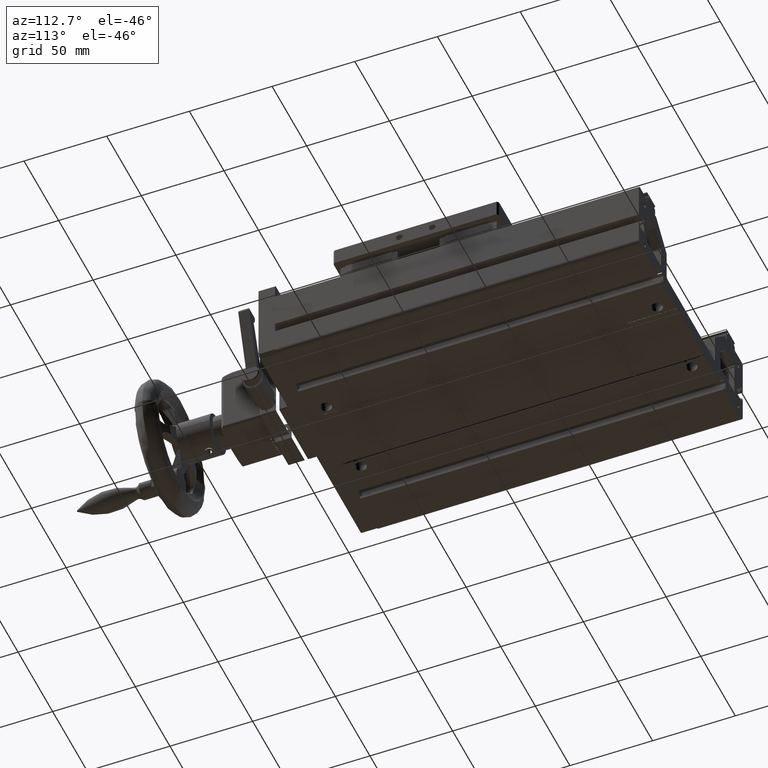
[diagram: clean part render]
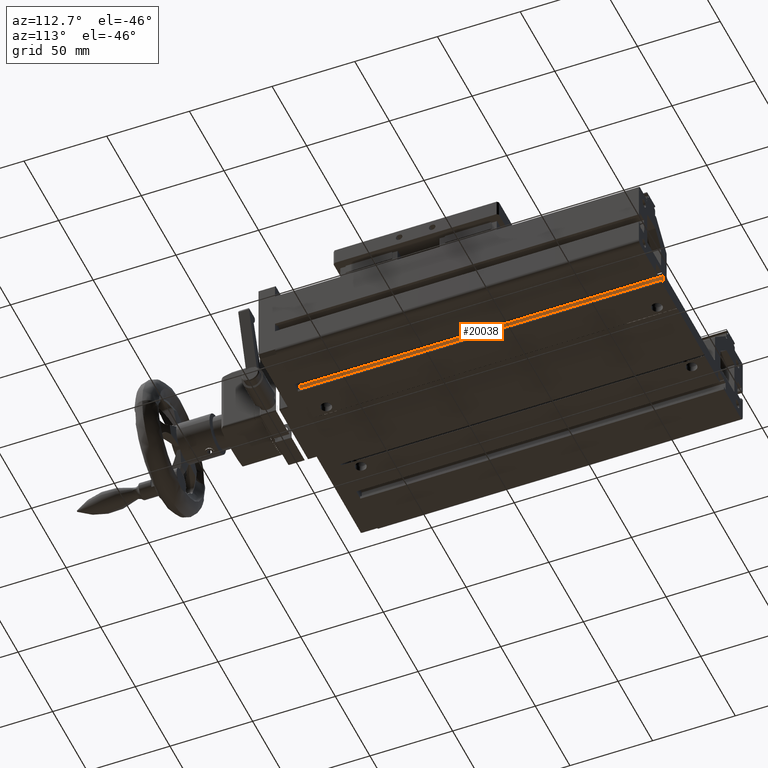
[diagram: same view with one face highlighted and labeled with its STEP entity id]
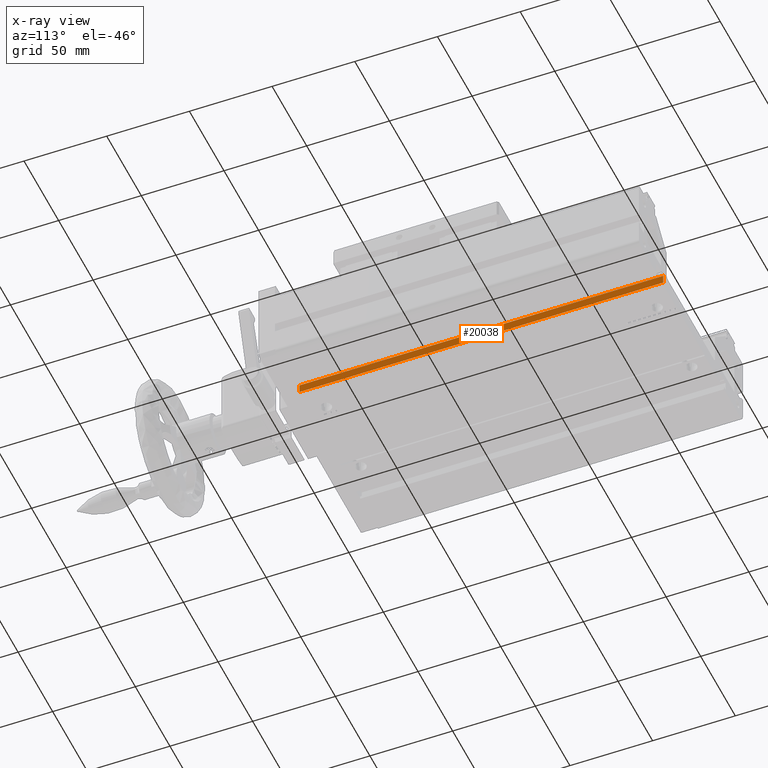
[diagram: x-ray of the same camera — body ghosted, the highlighted face saturated]
A machine part, auxiliary view. The second image highlights one B-rep face of the part: STEP entity #20038.
The next image is the same camera in x-ray: the body ghosted, the highlighted face saturated — about 0% of this face is hidden behind the body in this view.
In plain terms, the highlighted planar face has unit normal (1, -0, -0).
Its self-contained STEP definition (entity closure, byte-faithful):
#2361 = DIRECTION ( 'NONE',  ( 3.491481338843133355E-15, 1.000000000000000000, -3.657132581846951845E-29 ) ) ;
#4869 = ORIENTED_EDGE ( 'NONE', *, *, #21331, .T. ) ;
#4910 = CARTESIAN_POINT ( 'NONE',  ( 11.92352052019934838, -133.0472645979089350, -15.79999999999870397 ) ) ;
#5310 = DIRECTION ( 'NONE',  ( 1.000000000000000000, -3.491481338843133355E-15, -3.491481338843133355E-15 ) ) ;
#6285 = CARTESIAN_POINT ( 'NONE',  ( 11.92352052019934838, -133.0472645979089350, -15.79999999999870397 ) ) ;
#6521 = DIRECTION ( 'NONE',  ( -3.491481338843133355E-15, -2.438088387897967896E-29, -1.000000000000000000 ) ) ;
#7042 = EDGE_CURVE ( 'NONE', #29718, #9316, #10749, .T. ) ;
#7658 = DIRECTION ( 'NONE',  ( 3.491481338843133355E-15, 1.000000000000000000, -3.657132581846951845E-29 ) ) ;
#9001 = EDGE_CURVE ( 'NONE', #9316, #11648, #23898, .T. ) ;
#9316 = VERTEX_POINT ( 'NONE', #11473 ) ;
#10749 = LINE ( 'NONE', #4910, #13978 ) ;
#10856 = AXIS2_PLACEMENT_3D ( 'NONE', #21727, #5310, #2361 ) ;
#10865 = CARTESIAN_POINT ( 'NONE',  ( 11.92352052019934838, -133.0472645979089350, -21.20000000000032969 ) ) ;
#11473 = CARTESIAN_POINT ( 'NONE',  ( 11.92352052020012643, 86.95273540209106500, -15.79999999999870397 ) ) ;
#11485 = LINE ( 'NONE', #14204, #23718 ) ;
#11648 = VERTEX_POINT ( 'NONE', #28869 ) ;
#11989 = ORIENTED_EDGE ( 'NONE', *, *, #7042, .F. ) ;
#12248 = DIRECTION ( 'NONE',  ( -3.491481338843133355E-15, -2.438088387897967896E-29, -1.000000000000000000 ) ) ;
#13978 = VECTOR ( 'NONE', #7658, 1000.000000000000000 ) ;
#14204 = CARTESIAN_POINT ( 'NONE',  ( 11.92352052019934838, -133.0472645979089350, -21.20000000000032969 ) ) ;
#18523 = EDGE_LOOP ( 'NONE', ( #23067, #11989, #4869, #27454 ) ) ;
#20038 = ADVANCED_FACE ( 'NONE', ( #32780 ), #22439, .T. ) ;
#21331 = EDGE_CURVE ( 'NONE', #29718, #33239, #11485, .T. ) ;
#21727 = CARTESIAN_POINT ( 'NONE',  ( 11.92352052019934838, -133.0472645979089350, -21.20000000000032969 ) ) ;
#22439 = PLANE ( 'NONE',  #10856 ) ;
#23067 = ORIENTED_EDGE ( 'NONE', *, *, #9001, .F. ) ;
#23359 = VECTOR ( 'NONE', #27678, 1000.000000000000000 ) ;
#23718 = VECTOR ( 'NONE', #6521, 1000.000000000000000 ) ;
#23898 = LINE ( 'NONE', #31495, #32964 ) ;
#26949 = LINE ( 'NONE', #30244, #23359 ) ;
#27454 = ORIENTED_EDGE ( 'NONE', *, *, #31371, .T. ) ;
#27678 = DIRECTION ( 'NONE',  ( 3.491481338843133355E-15, 1.000000000000000000, -3.657132581846951845E-29 ) ) ;
#28869 = CARTESIAN_POINT ( 'NONE',  ( 11.92352052020012643, 86.95273540209106500, -21.20000000000032969 ) ) ;
#29718 = VERTEX_POINT ( 'NONE', #6285 ) ;
#30244 = CARTESIAN_POINT ( 'NONE',  ( 11.92352052019934838, -133.0472645979089350, -21.20000000000032969 ) ) ;
#31371 = EDGE_CURVE ( 'NONE', #33239, #11648, #26949, .T. ) ;
#31495 = CARTESIAN_POINT ( 'NONE',  ( 11.92352052020012643, 86.95273540209106500, -21.20000000000032969 ) ) ;
#32780 = FACE_OUTER_BOUND ( 'NONE', #18523, .T. ) ;
#32964 = VECTOR ( 'NONE', #12248, 1000.000000000000000 ) ;
#33239 = VERTEX_POINT ( 'NONE', #10865 ) ;